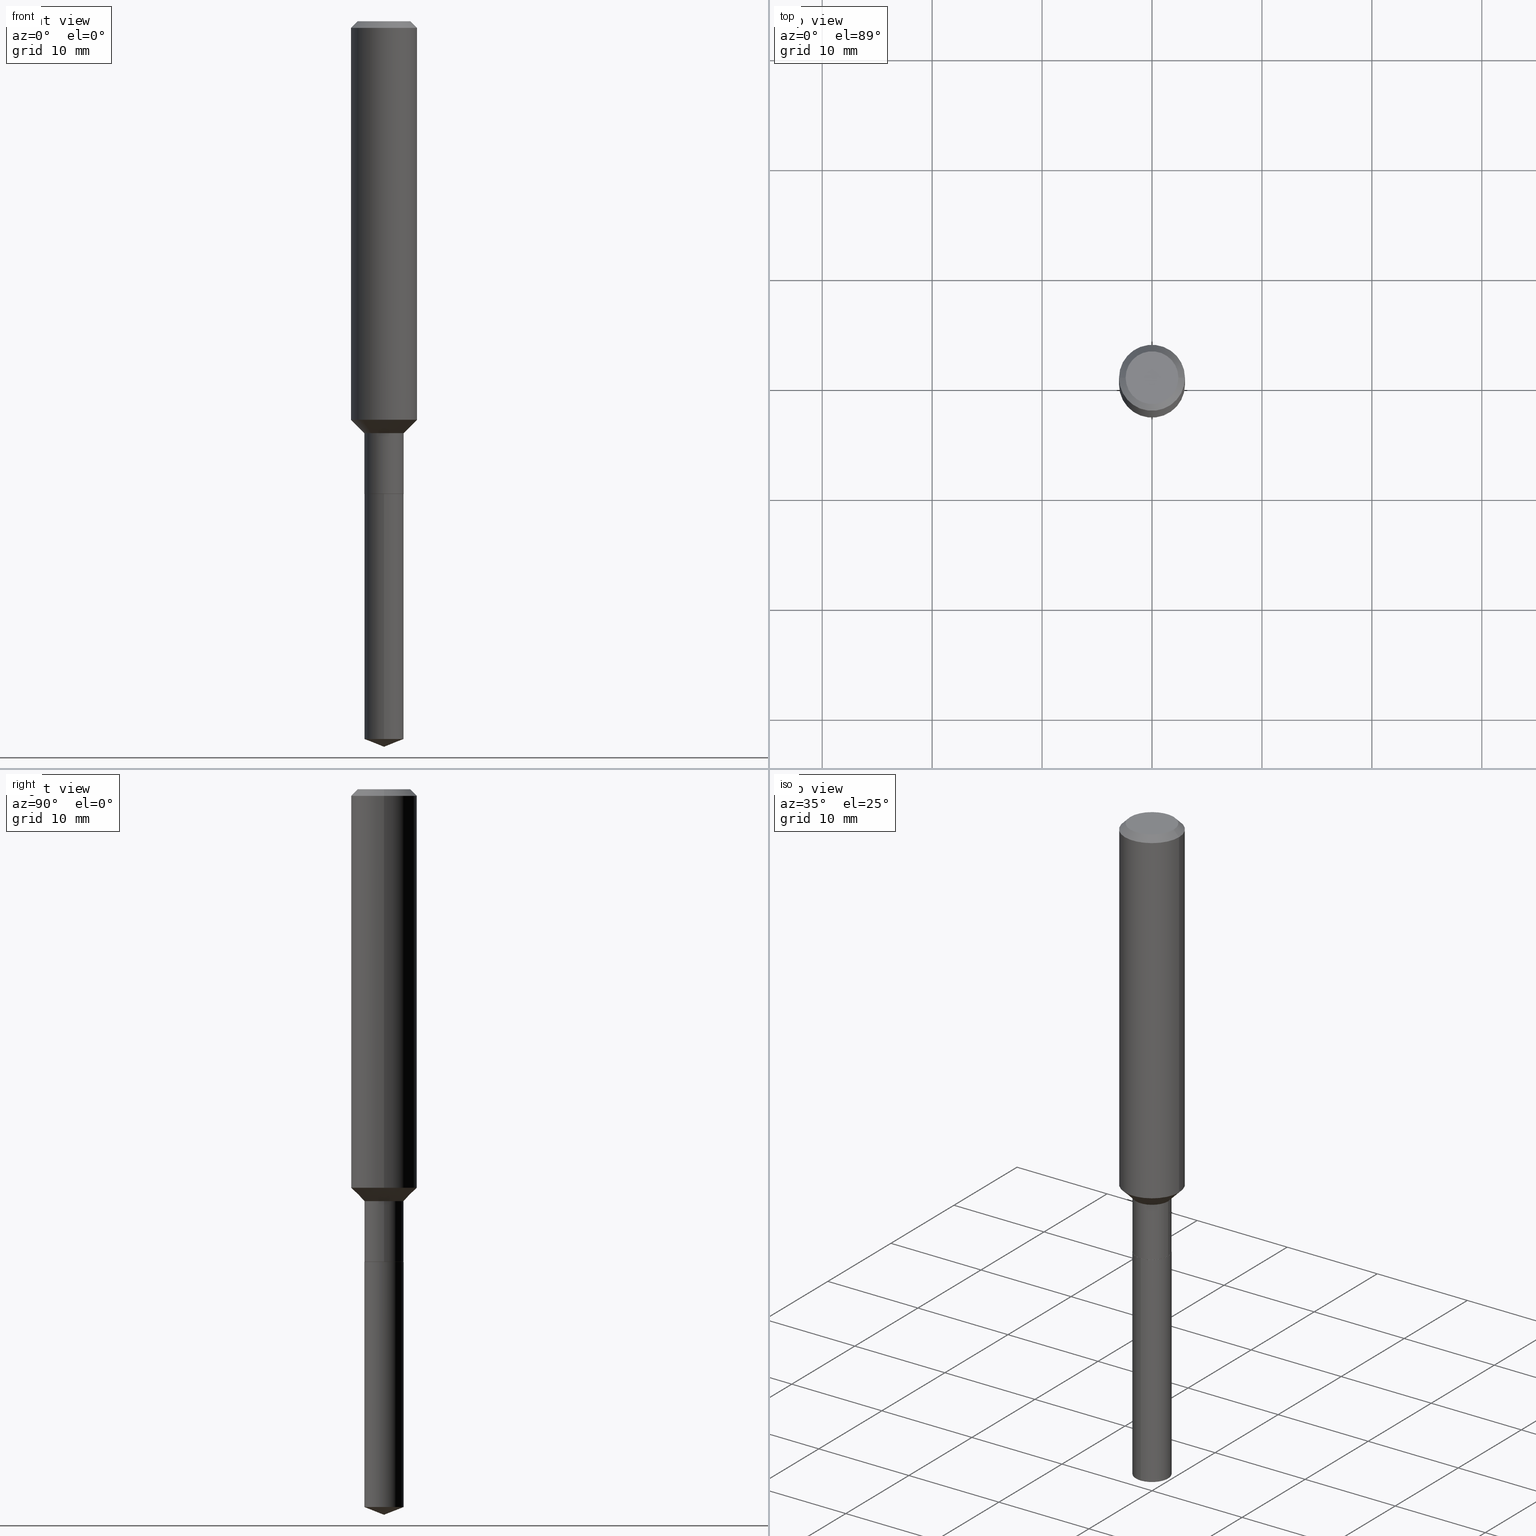
[diagram: canonical four-view strip — front | top / right | iso, engineering-drawing reading convention]
A machine part, canonical four-view strip (front | top / right | iso — engineering-drawing reading convention). The complete STEP part file that produces these views, byte-faithful:
ISO-10303-21;
HEADER;
FILE_DESCRIPTION (( 'STEP AP203' ),
    '1' );
FILE_NAME ('56438.STEP',
    '2024-04-24T17:45:18',
    ( '' ),
    ( '' ),
    'SwSTEP 2.0',
    'SolidWorks 2023',
    '' );
FILE_SCHEMA (( 'CONFIG_CONTROL_DESIGN' ));
ENDSEC;

DATA;
#1 = DIRECTION ( 'NONE',  ( -2.458755392801124064E-29, 3.472454190583504917E-15, 1.000000000000000000 ) ) ;
#2 = CC_DESIGN_PERSON_AND_ORGANIZATION_ASSIGNMENT ( #448, #259, ( #267 ) ) ;
#3 = APPROVAL_DATE_TIME ( #459, #125 ) ;
#4 = CARTESIAN_POINT ( 'NONE',  ( 4.138955954468343780E-29, -5.909332165992023872E-15, -1.692500000000000115 ) ) ;
#5 = PRODUCT ( '56438', '56438', '', ( #222 ) ) ;
#6 = CARTESIAN_POINT ( 'NONE',  ( 0.000000000000000000, 0.000000000000000000, 0.000000000000000000 ) ) ;
#7 = DIRECTION ( 'NONE',  ( 0.7071067811865459074, -7.319954787623249734E-15, -0.7071067811865491270 ) ) ;
#8 = CIRCLE ( 'NONE', #107, 0.06980000000000000093 ) ;
#9 = DIRECTION ( 'NONE',  ( -2.445468806185136877E-29, 3.491481338843145188E-15, 1.000000000000000000 ) ) ;
#10 = EDGE_CURVE ( 'NONE', #425, #445, #310, .T. ) ;
#11 = CARTESIAN_POINT ( 'NONE',  ( 4.138955954468343780E-29, -5.909332165992023872E-15, -1.692500000000000115 ) ) ;
#12 = ORIENTED_EDGE ( 'NONE', *, *, #160, .T. ) ;
#13 = FACE_OUTER_BOUND ( 'NONE', #433, .T. ) ;
#14 = VERTEX_POINT ( 'NONE', #145 ) ;
#15 = AXIS2_PLACEMENT_3D ( 'NONE', #25, #138, #399 ) ;
#16 = CONICAL_SURFACE ( 'NONE', #299, 0.06980000000000000093, 0.7853981633975507526 ) ;
#17 = CYLINDRICAL_SURFACE ( 'NONE', #234, 0.1181000000000000799 ) ;
#18 = ORIENTED_EDGE ( 'NONE', *, *, #320, .T. ) ;
#19 = PLANE ( 'NONE',  #334 ) ;
#20 = EDGE_LOOP ( 'NONE', ( #404, #218, #257, #255 ) ) ;
#21 = DIRECTION ( 'NONE',  ( -2.445468806185136597E-29, 3.491481338843145583E-15, 1.000000000000000000 ) ) ;
#22 = AXIS2_PLACEMENT_3D ( 'NONE', #273, #277, #84 ) ;
#23 = LENGTH_MEASURE_WITH_UNIT ( LENGTH_MEASURE( 0.02539999999999999897 ), #215 );
#24 = VERTEX_POINT ( 'NONE', #296 ) ;
#25 = CARTESIAN_POINT ( 'NONE',  ( 4.137733220065251539E-29, -5.907586425322602368E-15, -1.692000000000000171 ) ) ;
#26 = CYLINDRICAL_SURFACE ( 'NONE', #458, 0.07029999999999998750 ) ;
#27 = ORIENTED_EDGE ( 'NONE', *, *, #208, .F. ) ;
#28 = FACE_OUTER_BOUND ( 'NONE', #68, .T. ) ;
#29 = ORIENTED_EDGE ( 'NONE', *, *, #340, .T. ) ;
#30 = DATE_AND_TIME ( #39, #228 ) ;
#31 = ORIENTED_EDGE ( 'NONE', *, *, #209, .T. ) ;
#32 = DATE_TIME_ROLE ( 'classification_date' ) ;
#33 = CARTESIAN_POINT ( 'NONE',  ( 4.138955954468343780E-29, -5.909332165992023872E-15, -1.692500000000000115 ) ) ;
#34 = PERSON_AND_ORGANIZATION ( #373, #276 ) ;
#35 = CLOSED_SHELL ( 'NONE', ( #171, #269, #261, #232, #401, #80, #341, #117, #434, #144, #419, #368 ) ) ;
#36 = CYLINDRICAL_SURFACE ( 'NONE', #318, 0.07029999999999998750 ) ;
#37 = VECTOR ( 'NONE', #54, 39.37007874015748143 ) ;
#38 = DIRECTION ( 'NONE',  ( 1.000000000000000000, -6.982962677686266711E-15, 4.876176775795935232E-29 ) ) ;
#39 = CALENDAR_DATE ( 2024, 24, 4 ) ;
#40 = LINE ( 'NONE', #194, #126 ) ;
#41 = PRODUCT_DEFINITION ( 'UNKNOWN', '', #212, #151 ) ;
#42 = LINE ( 'NONE', #337, #305 ) ;
#43 = AXIS2_PLACEMENT_3D ( 'NONE', #156, #265, #343 ) ;
#44 = CONICAL_SURFACE ( 'NONE', #183, 0.07029999999999997362, 0.7853981633974507215 ) ;
#45 = VECTOR ( 'NONE', #220, 39.37007874015748143 ) ;
#46 = DIMENSIONAL_EXPONENTS ( 1.000000000000000000, 0.000000000000000000, 0.000000000000000000, 0.000000000000000000, 0.000000000000000000, 0.000000000000000000, 0.000000000000000000 ) ;
#47 = CARTESIAN_POINT ( 'NONE',  ( 0.07029999999999998750, -4.909022762413444543E-16, 3.427952273384541736E-30 ) ) ;
#48 = FACE_OUTER_BOUND ( 'NONE', #465, .T. ) ;
#49 = VERTEX_POINT ( 'NONE', #406 ) ;
#50 = CARTESIAN_POINT ( 'NONE',  ( 0.000000000000000000, 0.000000000000000000, 0.000000000000000000 ) ) ;
#51 = ORIENTED_EDGE ( 'NONE', *, *, #313, .T. ) ;
#52 = CIRCLE ( 'NONE', #157, 0.07029999999999997362 ) ;
#53 = CIRCLE ( 'NONE', #204, 0.07029999999999998750 ) ;
#54 = DIRECTION ( 'NONE',  ( -2.445468806185136877E-29, 3.491481338843145188E-15, 1.000000000000000000 ) ) ;
#55 = EDGE_CURVE ( 'NONE', #24, #445, #110, .T. ) ;
#56 = DIRECTION ( 'NONE',  ( -2.445468806185136597E-29, 3.491481338843145583E-15, 1.000000000000000000 ) ) ;
#57 = ORIENTED_EDGE ( 'NONE', *, *, #345, .T. ) ;
#58 = AXIS2_PLACEMENT_3D ( 'NONE', #11, #207, #354 ) ;
#59 = LOCAL_TIME ( 13, 45, 18.00000000000000000, #410 ) ;
#60 = DIRECTION ( 'NONE',  ( -2.438088387897960049E-29, 3.491481338843145188E-15, 1.000000000000000000 ) ) ;
#61 = ORIENTED_EDGE ( 'NONE', *, *, #247, .F. ) ;
#62 = DIRECTION ( 'NONE',  ( 1.000000000000000000, -6.982962677686267499E-15, 4.875432709231658792E-29 ) ) ;
#63 = VERTEX_POINT ( 'NONE', #196 ) ;
#64 = CYLINDRICAL_SURFACE ( 'NONE', #386, 0.07029999999999998750 ) ;
#65 = VERTEX_POINT ( 'NONE', #233 ) ;
#66 = DIRECTION ( 'NONE',  ( 1.000000000000000000, -6.982962677686266711E-15, 4.876176775795935232E-29 ) ) ;
#67 = CIRCLE ( 'NONE', #394, 0.1180999999999999966 ) ;
#68 = EDGE_LOOP ( 'NONE', ( #469, #100, #253, #364 ) ) ;
#69 = EDGE_CURVE ( 'NONE', #65, #317, #349, .T. ) ;
#70 = CARTESIAN_POINT ( 'NONE',  ( 6.297271338363965962E-29, -8.957480559017389786E-15, -2.570308093564269925 ) ) ;
#71 = ADVANCED_FACE ( 'NONE', ( #487 ), #223, .T. ) ;
#72 = CALENDAR_DATE ( 2024, 24, 4 ) ;
#73 = DIRECTION ( 'NONE',  ( -2.445468806185136597E-29, 3.491481338843145583E-15, 1.000000000000000000 ) ) ;
#74 = PERSON_AND_ORGANIZATION_ROLE ( 'creator' ) ;
#75 = CARTESIAN_POINT ( 'NONE',  ( 0.07029999999999997362, -5.640488102901100489E-15, -1.474900000000000100 ) ) ;
#76 = EDGE_CURVE ( 'NONE', #243, #200, #106, .T. ) ;
#77 = AXIS2_PLACEMENT_3D ( 'NONE', #319, #60, #133 ) ;
#78 =( GEOMETRIC_REPRESENTATION_CONTEXT ( 3 ) GLOBAL_UNCERTAINTY_ASSIGNED_CONTEXT ( ( #224 ) ) GLOBAL_UNIT_ASSIGNED_CONTEXT ( ( #135, #328, #363 ) ) REPRESENTATION_CONTEXT ( 'NONE', 'WORKASPACE' ) );
#79 = DIRECTION ( 'NONE',  ( -6.982962677686265133E-15, -1.000000000000000000, 3.885985766236505386E-15 ) ) ;
#80 = ADVANCED_FACE ( 'NONE', ( #303 ), #36, .T. ) ;
#81 = CALENDAR_DATE ( 2024, 24, 4 ) ;
#82 = DIRECTION ( 'NONE',  ( -1.000000000000000000, 6.982962677686265922E-15, -4.876176775795935793E-29 ) ) ;
#83 = CC_DESIGN_PERSON_AND_ORGANIZATION_ASSIGNMENT ( #188, #152, ( #5 ) ) ;
#84 = DIRECTION ( 'NONE',  ( 1.000000000000000000, -6.982962677686268288E-15, 0.000000000000000000 ) ) ;
#85 = ORIENTED_EDGE ( 'NONE', *, *, #175, .T. ) ;
#86 = CIRCLE ( 'NONE', #147, 0.1181000000000001632 ) ;
#87 = EDGE_CURVE ( 'NONE', #243, #329, #153, .T. ) ;
#88 = PRODUCT_DEFINITION_SHAPE ( 'NONE', 'NONE',  #41 ) ;
#89 = DIRECTION ( 'NONE',  ( 1.000000000000000000, -6.982962677686265133E-15, 0.000000000000000000 ) ) ;
#90 = ADVANCED_BREP_SHAPE_REPRESENTATION ( '56438', ( #213, #206, #361 ), #78 ) ;
#91 = CARTESIAN_POINT ( 'NONE',  ( -0.07029999999999997362, -4.650074283420406482E-15, -1.474900000000000100 ) ) ;
#92 = FACE_OUTER_BOUND ( 'NONE', #20, .T. ) ;
#93 = ORIENTED_EDGE ( 'NONE', *, *, #272, .F. ) ;
#94 = VECTOR ( 'NONE', #308, 39.37007874015748143 ) ;
#95 = DIRECTION ( 'NONE',  ( 1.000000000000000000, -6.982962677686267499E-15, 4.875432709231658792E-29 ) ) ;
#96 = ORIENTED_EDGE ( 'NONE', *, *, #76, .T. ) ;
#97 = DIRECTION ( 'NONE',  ( -2.458755392801124344E-29, 3.472454190583505312E-15, 1.000000000000000000 ) ) ;
#98 = ORIENTED_EDGE ( 'NONE', *, *, #124, .F. ) ;
#99 = CARTESIAN_POINT ( 'NONE',  ( -0.07029999999999998750, 4.995115432393503418E-16, -3.458011368449198169E-30 ) ) ;
#100 = ORIENTED_EDGE ( 'NONE', *, *, #407, .T. ) ;
#101 = ORIENTED_EDGE ( 'NONE', *, *, #481, .F. ) ;
#102 = DIRECTION ( 'NONE',  ( -2.445468806185136597E-29, 3.491481338843145583E-15, 1.000000000000000000 ) ) ;
#103 = ORIENTED_EDGE ( 'NONE', *, *, #230, .F. ) ;
#104 = DIRECTION ( 'NONE',  ( -1.000000000000000000, 6.982962677686266711E-15, 0.000000000000000000 ) ) ;
#105 = ORIENTED_EDGE ( 'NONE', *, *, #208, .T. ) ;
#106 = CIRCLE ( 'NONE', #43, 0.1181000000000001632 ) ;
#107 = AXIS2_PLACEMENT_3D ( 'NONE', #422, #351, #356 ) ;
#108 = DATE_AND_TIME ( #72, #352 ) ;
#109 = CC_DESIGN_APPROVAL ( #294, ( #212 ) ) ;
#110 = LINE ( 'NONE', #271, #280 ) ;
#111 = CARTESIAN_POINT ( 'NONE',  ( -9.043603445471733457E-28, 1.276571554692970096E-13, 36.77207874015748246 ) ) ;
#112 = APPROVAL_STATUS ( 'not_yet_approved' ) ;
#113 = FACE_OUTER_BOUND ( 'NONE', #485, .T. ) ;
#114 = PERSON_AND_ORGANIZATION ( #373, #276 ) ;
#115 = LINE ( 'NONE', #268, #130 ) ;
#116 = CONICAL_SURFACE ( 'NONE', #367, 0.1180999999999999966, 0.7853981633974460586 ) ;
#117 = ADVANCED_FACE ( 'NONE', ( #301 ), #225, .T. ) ;
#118 = PRODUCT_RELATED_PRODUCT_CATEGORY ( 'detail', '', ( #5 ) ) ;
#119 = PERSON_AND_ORGANIZATION ( #373, #276 ) ;
#120 = LINE ( 'NONE', #468, #94 ) ;
#121 = DIRECTION ( 'NONE',  ( -2.445468806185136597E-29, 3.491481338843145583E-15, 1.000000000000000000 ) ) ;
#122 = CARTESIAN_POINT ( 'NONE',  ( 3.606821942242458368E-29, -5.149585826659756331E-15, -1.474900000000000100 ) ) ;
#123 = ORIENTED_EDGE ( 'NONE', *, *, #180, .T. ) ;
#124 = EDGE_CURVE ( 'NONE', #293, #243, #374, .T. ) ;
#125 = APPROVAL ( #302, 'UNSPECIFIED' ) ;
#126 = VECTOR ( 'NONE', #7, 39.37007874015748143 ) ;
#127 = CARTESIAN_POINT ( 'NONE',  ( 4.138955954468343780E-29, -5.909332165992023872E-15, -1.692500000000000115 ) ) ;
#128 = CARTESIAN_POINT ( 'NONE',  ( 0.1180999999999999966, -9.071566814582237199E-16, -0.02362000000000014435 ) ) ;
#129 = DIRECTION ( 'NONE',  ( -2.445468806185136597E-29, 3.491481338843145583E-15, 1.000000000000000000 ) ) ;
#130 = VECTOR ( 'NONE', #460, 39.37007874015748143 ) ;
#131 = AXIS2_PLACEMENT_3D ( 'NONE', #127, #278, #344 ) ;
#132 = AXIS2_PLACEMENT_3D ( 'NONE', #432, #102, #62 ) ;
#133 = DIRECTION ( 'NONE',  ( 1.000000000000000000, -6.982962677686265922E-15, 4.876176775795935793E-29 ) ) ;
#134 = ORIENTED_EDGE ( 'NONE', *, *, #230, .T. ) ;
#135 =( CONVERSION_BASED_UNIT ( 'INCH', #23 ) LENGTH_UNIT ( ) NAMED_UNIT ( #46 ) );
#136 = EDGE_LOOP ( 'NONE', ( #96, #182, #103, #360 ) ) ;
#137 = DIRECTION ( 'NONE',  ( -6.982962677686266711E-15, -1.000000000000000000, 3.885985766236506175E-15 ) ) ;
#138 = DIRECTION ( 'NONE',  ( -2.445468806185136597E-29, 3.491481338843145583E-15, 1.000000000000000000 ) ) ;
#139 = CIRCLE ( 'NONE', #174, 0.07030000000000000138 ) ;
#140 = CC_DESIGN_SECURITY_CLASSIFICATION ( #267, ( #212 ) ) ;
#141 = DIRECTION ( 'NONE',  ( -2.458755392801124064E-29, 3.472454190583504917E-15, 1.000000000000000000 ) ) ;
#142 = ORIENTED_EDGE ( 'NONE', *, *, #240, .F. ) ;
#143 = CARTESIAN_POINT ( 'NONE',  ( -0.07030000000000000138, -5.029074582751829501E-15, -1.692000000000000171 ) ) ;
#144 = ADVANCED_FACE ( 'NONE', ( #191 ), #339, .F. ) ;
#145 = CARTESIAN_POINT ( 'NONE',  ( 6.387846510497319786E-29, -9.021435987135946659E-15, -2.597999999999999865 ) ) ;
#146 = ORIENTED_EDGE ( 'NONE', *, *, #76, .F. ) ;
#147 = AXIS2_PLACEMENT_3D ( 'NONE', #241, #387, #382 ) ;
#148 = CALENDAR_DATE ( 2024, 24, 4 ) ;
#149 = CIRCLE ( 'NONE', #132, 0.09447999999999998066 ) ;
#150 = DIRECTION ( 'NONE',  ( 1.000000000000000000, -6.982962677686271444E-15, 0.000000000000000000 ) ) ;
#151 = DESIGN_CONTEXT ( 'detailed design', #205, 'design' ) ;
#152 = PERSON_AND_ORGANIZATION_ROLE ( 'design_owner' ) ;
#153 = LINE ( 'NONE', #454, #380 ) ;
#154 = DIRECTION ( 'NONE',  ( -2.445468806185136597E-29, 3.491481338843145583E-15, 1.000000000000000000 ) ) ;
#155 = EDGE_CURVE ( 'NONE', #200, #483, #42, .T. ) ;
#156 = CARTESIAN_POINT ( 'NONE',  ( 3.489928533306808856E-29, -4.982693018663053490E-15, -1.427100000000000257 ) ) ;
#157 = AXIS2_PLACEMENT_3D ( 'NONE', #314, #129, #279 ) ;
#158 = CIRCLE ( 'NONE', #471, 0.1180999999999999966 ) ;
#159 = DIRECTION ( 'NONE',  ( -0.7071067811866199593, 7.493145998870616062E-15, 0.7071067811864750752 ) ) ;
#160 = EDGE_CURVE ( 'NONE', #324, #185, #258, .T. ) ;
#161 = DIRECTION ( 'NONE',  ( -2.445468806185136597E-29, 3.491481338843145583E-15, 1.000000000000000000 ) ) ;
#162 = ORIENTED_EDGE ( 'NONE', *, *, #10, .T. ) ;
#163 = CARTESIAN_POINT ( 'NONE',  ( 5.776197320209328408E-31, -8.246878922347560526E-17, -0.02362000000000014435 ) ) ;
#164 = EDGE_LOOP ( 'NONE', ( #282, #474, #436, #176 ) ) ;
#165 = APPROVAL_PERSON_ORGANIZATION ( #114, #397, #190 ) ;
#166 = ADVANCED_FACE ( 'NONE', ( #113 ), #359, .T. ) ;
#167 = CARTESIAN_POINT ( 'NONE',  ( -0.06980000000000000093, -5.413373336431474133E-15, -1.692500000000000115 ) ) ;
#168 = ORIENTED_EDGE ( 'NONE', *, *, #477, .F. ) ;
#169 = CARTESIAN_POINT ( 'NONE',  ( 4.138955954468343780E-29, -5.909332165992023872E-15, -1.692500000000000115 ) ) ;
#170 = ORIENTED_EDGE ( 'NONE', *, *, #281, .F. ) ;
#171 = ADVANCED_FACE ( 'NONE', ( #450 ), #16, .T. ) ;
#172 = CARTESIAN_POINT ( 'NONE',  ( -0.07029999999999997362, -5.029074582751829501E-15, -1.474900000000000100 ) ) ;
#173 = VECTOR ( 'NONE', #452, 39.37007874015748143 ) ;
#174 = AXIS2_PLACEMENT_3D ( 'NONE', #416, #263, #79 ) ;
#175 = EDGE_CURVE ( 'NONE', #49, #483, #115, .T. ) ;
#176 = ORIENTED_EDGE ( 'NONE', *, *, #160, .F. ) ;
#177 = CARTESIAN_POINT ( 'NONE',  ( 0.000000000000000000, 0.000000000000000000, 0.000000000000000000 ) ) ;
#178 = CC_DESIGN_PERSON_AND_ORGANIZATION_ASSIGNMENT ( #408, #330, ( #212 ) ) ;
#179 = ORIENTED_EDGE ( 'NONE', *, *, #240, .T. ) ;
#180 = EDGE_CURVE ( 'NONE', #185, #324, #139, .T. ) ;
#181 = CARTESIAN_POINT ( 'NONE',  ( 5.776197320209328408E-31, -8.246878922347560526E-17, -0.02362000000000014435 ) ) ;
#182 = ORIENTED_EDGE ( 'NONE', *, *, #155, .T. ) ;
#183 = AXIS2_PLACEMENT_3D ( 'NONE', #122, #245, #309 ) ;
#184 = CARTESIAN_POINT ( 'NONE',  ( 3.606821942242458368E-29, -5.149585826659756331E-15, -1.474900000000000100 ) ) ;
#185 = VERTEX_POINT ( 'NONE', #231 ) ;
#186 = PERSON_AND_ORGANIZATION_ROLE ( 'creator' ) ;
#187 = ORIENTED_EDGE ( 'NONE', *, *, #155, .F. ) ;
#188 = PERSON_AND_ORGANIZATION ( #373, #276 ) ;
#189 = CARTESIAN_POINT ( 'NONE',  ( 3.301506705810441154E-46, -4.713676585956823162E-32, -1.350050631380041873E-17 ) ) ;
#190 = APPROVAL_ROLE ( '' ) ;
#191 = FACE_OUTER_BOUND ( 'NONE', #388, .T. ) ;
#192 = DIRECTION ( 'NONE',  ( -6.982962677686265922E-15, -1.000000000000000000, 3.498627837350006195E-15 ) ) ;
#193 = COORDINATED_UNIVERSAL_TIME_OFFSET ( 5, 0, .BEHIND. ) ;
#194 = CARTESIAN_POINT ( 'NONE',  ( 0.1180999999999999966, -8.926936027602933910E-16, -0.02362000000000014435 ) ) ;
#195 = AXIS2_PLACEMENT_3D ( 'NONE', #420, #383, #95 ) ;
#196 = CARTESIAN_POINT ( 'NONE',  ( -0.06980000000000000093, -5.410724109257362932E-15, -1.692500000000000115 ) ) ;
#197 = AXIS2_PLACEMENT_3D ( 'NONE', #184, #256, #403 ) ;
#198 = APPROVAL_PERSON_ORGANIZATION ( #34, #125, #270 ) ;
#199 = CARTESIAN_POINT ( 'NONE',  ( 0.1181000000000001632, -5.807380910897803330E-15, -1.427100000000000257 ) ) ;
#200 = VERTEX_POINT ( 'NONE', #378 ) ;
#201 = CARTESIAN_POINT ( 'NONE',  ( 4.995115432394133521E-16, 0.07029999999999408944, -1.692500000000000338 ) ) ;
#202 = ORIENTED_EDGE ( 'NONE', *, *, #481, .T. ) ;
#203 = CARTESIAN_POINT ( 'NONE',  ( 6.388240888997725436E-29, -9.021435987135945081E-15, -2.597999999999999865 ) ) ;
#204 = AXIS2_PLACEMENT_3D ( 'NONE', #444, #254, #250 ) ;
#205 = APPLICATION_CONTEXT ( 'configuration controlled 3d designs of mechanical parts and assemblies' ) ;
#206 = MANIFOLD_SOLID_BREP ( 'Body-Move/Copy2[2]', #35 ) ;
#207 = DIRECTION ( 'NONE',  ( -2.445468806185136597E-29, 3.491481338843145583E-15, 1.000000000000000000 ) ) ;
#208 = EDGE_CURVE ( 'NONE', #385, #329, #40, .T. ) ;
#209 = EDGE_CURVE ( 'NONE', #14, #65, #120, .T. ) ;
#210 = FACE_OUTER_BOUND ( 'NONE', #431, .T. ) ;
#211 = EDGE_LOOP ( 'NONE', ( #214, #170 ) ) ;
#212 = PRODUCT_DEFINITION_FORMATION_WITH_SPECIFIED_SOURCE ( 'ANY', '', #5, .NOT_KNOWN. ) ;
#213 = MANIFOLD_SOLID_BREP ( 'Body-Move/Copy2[1]', #392 ) ;
#214 = ORIENTED_EDGE ( 'NONE', *, *, #340, .F. ) ;
#215 =( LENGTH_UNIT ( ) NAMED_UNIT ( * ) SI_UNIT ( $, .METRE. ) );
#216 = ORIENTED_EDGE ( 'NONE', *, *, #439, .T. ) ;
#217 = CARTESIAN_POINT ( 'NONE',  ( -0.1180999999999999966, -1.693429933010585093E-15, -0.02362000000000014435 ) ) ;
#218 = ORIENTED_EDGE ( 'NONE', *, *, #242, .T. ) ;
#219 = AXIS2_PLACEMENT_3D ( 'NONE', #275, #121, #89 ) ;
#220 = DIRECTION ( 'NONE',  ( -2.445468806185136877E-29, 3.491481338843145188E-15, 1.000000000000000000 ) ) ;
#221 = ORIENTED_EDGE ( 'NONE', *, *, #320, .F. ) ;
#222 = MECHANICAL_CONTEXT ( 'NONE', #411, 'mechanical' ) ;
#223 = CYLINDRICAL_SURFACE ( 'NONE', #457, 0.07029999999999998750 ) ;
#224 = UNCERTAINTY_MEASURE_WITH_UNIT (LENGTH_MEASURE( 1.000000000000000082E-05 ), #135, 'distance_accuracy_value', 'NONE');
#225 = CYLINDRICAL_SURFACE ( 'NONE', #449, 0.1181000000000000799 ) ;
#226 = VECTOR ( 'NONE', #429, 39.37007874015748854 ) ;
#227 = DATE_AND_TIME ( #369, #430 ) ;
#228 = LOCAL_TIME ( 13, 45, 18.00000000000000000, #193 ) ;
#229 = DIRECTION ( 'NONE',  ( -6.982962677686266711E-15, -1.000000000000000000, 3.885985766236506175E-15 ) ) ;
#230 = EDGE_CURVE ( 'NONE', #329, #483, #67, .T. ) ;
#231 = CARTESIAN_POINT ( 'NONE',  ( -4.909022762413031377E-16, -0.07030000000000589944, -1.692499999999999671 ) ) ;
#232 = ADVANCED_FACE ( 'NONE', ( #13 ), #44, .T. ) ;
#233 = CARTESIAN_POINT ( 'NONE',  ( -4.909022762412812468E-16, -0.07030000000000892479, -2.570308093564269925 ) ) ;
#234 = AXIS2_PLACEMENT_3D ( 'NONE', #50, #56, #426 ) ;
#235 = LINE ( 'NONE', #203, #226 ) ;
#236 = ORIENTED_EDGE ( 'NONE', *, *, #467, .T. ) ;
#237 = FACE_OUTER_BOUND ( 'NONE', #370, .T. ) ;
#238 = LINE ( 'NONE', #91, #428 ) ;
#239 = ORIENTED_EDGE ( 'NONE', *, *, #355, .T. ) ;
#240 = EDGE_CURVE ( 'NONE', #63, #425, #389, .T. ) ;
#241 = CARTESIAN_POINT ( 'NONE',  ( 3.489928533306808856E-29, -4.982693018663053490E-15, -1.427100000000000257 ) ) ;
#242 = EDGE_CURVE ( 'NONE', #476, #293, #52, .T. ) ;
#243 = VERTEX_POINT ( 'NONE', #199 ) ;
#244 = CIRCLE ( 'NONE', #219, 0.07030000000000000138 ) ;
#245 = DIRECTION ( 'NONE',  ( -2.445468806185136597E-29, 3.491481338843145583E-15, 1.000000000000000000 ) ) ;
#246 = ORIENTED_EDGE ( 'NONE', *, *, #247, .T. ) ;
#247 = EDGE_CURVE ( 'NONE', #385, #49, #327, .T. ) ;
#248 = CARTESIAN_POINT ( 'NONE',  ( -4.909022762413030391E-16, -0.07030000000000589944, -1.692499999999999671 ) ) ;
#249 = EDGE_LOOP ( 'NONE', ( #27, #101, #85, #236 ) ) ;
#250 = DIRECTION ( 'NONE',  ( -6.982962677686265133E-15, -1.000000000000000000, 0.000000000000000000 ) ) ;
#251 = ORIENTED_EDGE ( 'NONE', *, *, #272, .T. ) ;
#252 = FACE_OUTER_BOUND ( 'NONE', #395, .T. ) ;
#253 = ORIENTED_EDGE ( 'NONE', *, *, #180, .F. ) ;
#254 = DIRECTION ( 'NONE',  ( -2.458755392801124064E-29, 3.472454190583504917E-15, 1.000000000000000000 ) ) ;
#255 = ORIENTED_EDGE ( 'NONE', *, *, #345, .F. ) ;
#256 = DIRECTION ( 'NONE',  ( -2.445468806185136597E-29, 3.491481338843145583E-15, 1.000000000000000000 ) ) ;
#257 = ORIENTED_EDGE ( 'NONE', *, *, #124, .T. ) ;
#258 = CIRCLE ( 'NONE', #283, 0.07030000000000000138 ) ;
#259 = PERSON_AND_ORGANIZATION_ROLE ( 'classification_officer' ) ;
#260 = DIRECTION ( 'NONE',  ( 0.7071067811866199593, -2.468850131083015945E-15, 0.7071067811864750752 ) ) ;
#261 = ADVANCED_FACE ( 'NONE', ( #384 ), #17, .T. ) ;
#262 = DATE_TIME_ROLE ( 'creation_date' ) ;
#263 = DIRECTION ( 'NONE',  ( -2.458755392801124064E-29, 3.472454190583504917E-15, 1.000000000000000000 ) ) ;
#264 = COORDINATED_UNIVERSAL_TIME_OFFSET ( 5, 0, .BEHIND. ) ;
#265 = DIRECTION ( 'NONE',  ( -2.445468806185136597E-29, 3.491481338843145583E-15, 1.000000000000000000 ) ) ;
#266 = APPROVAL_DATE_TIME ( #30, #294 ) ;
#267 = SECURITY_CLASSIFICATION ( '', '', #297 ) ;
#268 = CARTESIAN_POINT ( 'NONE',  ( -0.1180999999999999966, 7.422191030112725094E-16, -0.02362000000000014435 ) ) ;
#269 = ADVANCED_FACE ( 'NONE', ( #210 ), #479, .T. ) ;
#270 = APPROVAL_ROLE ( '' ) ;
#271 = CARTESIAN_POINT ( 'NONE',  ( 0.06980000000000000093, -6.396742960894525812E-15, -1.692500000000000115 ) ) ;
#272 = EDGE_CURVE ( 'NONE', #14, #317, #235, .T. ) ;
#273 = CARTESIAN_POINT ( 'NONE',  ( 3.606821942242458368E-29, -5.149585826659756331E-15, -1.474900000000000100 ) ) ;
#274 = CONICAL_SURFACE ( 'NONE', #58, 0.06980000000000000093, 0.7853981633975507526 ) ;
#275 = CARTESIAN_POINT ( 'NONE',  ( 4.137733220065251539E-29, -5.907586425322602368E-15, -1.692000000000000171 ) ) ;
#276 = ORGANIZATION ( 'UNSPECIFIED', 'UNSPECIFIED', '' ) ;
#277 = DIRECTION ( 'NONE',  ( -2.445468806185136597E-29, 3.491481338843145583E-15, 1.000000000000000000 ) ) ;
#278 = DIRECTION ( 'NONE',  ( -2.445468806185136597E-29, 3.491481338843145583E-15, 1.000000000000000000 ) ) ;
#279 = DIRECTION ( 'NONE',  ( 1.000000000000000000, -6.982962677686268288E-15, 0.000000000000000000 ) ) ;
#280 = VECTOR ( 'NONE', #260, 39.37007874015748143 ) ;
#281 = EDGE_CURVE ( 'NONE', #63, #24, #8, .T. ) ;
#282 = ORIENTED_EDGE ( 'NONE', *, *, #407, .F. ) ;
#283 = AXIS2_PLACEMENT_3D ( 'NONE', #304, #307, #409 ) ;
#284 = DIRECTION ( 'NONE',  ( -2.445468806185136597E-29, 3.491481338843145583E-15, 1.000000000000000000 ) ) ;
#285 = EDGE_LOOP ( 'NONE', ( #442, #162, #239, #427 ) ) ;
#286 = LINE ( 'NONE', #248, #421 ) ;
#287 = ORIENTED_EDGE ( 'NONE', *, *, #10, .F. ) ;
#288 = LINE ( 'NONE', #99, #45 ) ;
#289 = ORIENTED_EDGE ( 'NONE', *, *, #437, .T. ) ;
#290 = AXIS2_PLACEMENT_3D ( 'NONE', #393, #472, #478 ) ;
#291 = CC_DESIGN_APPROVAL ( #125, ( #41 ) ) ;
#292 = DIRECTION ( 'NONE',  ( 1.000000000000000000, -6.982962677686266711E-15, 0.000000000000000000 ) ) ;
#293 = VERTEX_POINT ( 'NONE', #466 ) ;
#294 = APPROVAL ( #338, 'UNSPECIFIED' ) ;
#295 = DIRECTION ( 'NONE',  ( 2.445468806185136597E-29, -3.491481338843145583E-15, -1.000000000000000000 ) ) ;
#296 = CARTESIAN_POINT ( 'NONE',  ( 0.06980000000000000093, -6.396742960894525812E-15, -1.692500000000000115 ) ) ;
#297 = SECURITY_CLASSIFICATION_LEVEL ( 'unclassified' ) ;
#298 = DIRECTION ( 'NONE',  ( 1.000000000000000000, -6.982962677686266711E-15, 4.876176775795936353E-29 ) ) ;
#299 = AXIS2_PLACEMENT_3D ( 'NONE', #4, #154, #150 ) ;
#300 = DATE_AND_TIME ( #148, #59 ) ;
#301 = FACE_OUTER_BOUND ( 'NONE', #423, .T. ) ;
#302 = APPROVAL_STATUS ( 'not_yet_approved' ) ;
#303 = FACE_OUTER_BOUND ( 'NONE', #285, .T. ) ;
#304 = CARTESIAN_POINT ( 'NONE',  ( 4.138955954468343780E-29, -5.909332165992023872E-15, -1.692500000000000115 ) ) ;
#305 = VECTOR ( 'NONE', #456, 39.37007874015748143 ) ;
#306 = APPLICATION_PROTOCOL_DEFINITION ( 'international standard', 'config_control_design', 1994, #411 ) ;
#307 = DIRECTION ( 'NONE',  ( -2.458755392801124064E-29, 3.472454190583504917E-15, 1.000000000000000000 ) ) ;
#308 = DIRECTION ( 'NONE',  ( -6.497071151882118258E-15, -0.9304175679820244627, 0.3665012267242971911 ) ) ;
#309 = DIRECTION ( 'NONE',  ( 1.000000000000000000, -6.982962677686268288E-15, 0.000000000000000000 ) ) ;
#310 = CIRCLE ( 'NONE', #15, 0.07030000000000000138 ) ;
#311 = DIRECTION ( 'NONE',  ( 2.445468806185136597E-29, -3.491481338843145583E-15, -1.000000000000000000 ) ) ;
#312 = CC_DESIGN_DATE_AND_TIME_ASSIGNMENT ( #227, #262, ( #41 ) ) ;
#313 = EDGE_CURVE ( 'NONE', #476, #200, #238, .T. ) ;
#314 = CARTESIAN_POINT ( 'NONE',  ( 3.606821942242458368E-29, -5.149585826659756331E-15, -1.474900000000000100 ) ) ;
#315 = ORIENTED_EDGE ( 'NONE', *, *, #55, .F. ) ;
#316 = LINE ( 'NONE', #47, #37 ) ;
#317 = VERTEX_POINT ( 'NONE', #461 ) ;
#318 = AXIS2_PLACEMENT_3D ( 'NONE', #379, #73, #38 ) ;
#319 = CARTESIAN_POINT ( 'NONE',  ( 4.138955954468343780E-29, -5.909332165992023872E-15, -1.692500000000000115 ) ) ;
#320 = EDGE_CURVE ( 'NONE', #445, #425, #244, .T. ) ;
#321 = CARTESIAN_POINT ( 'NONE',  ( 4.995115432393916584E-16, 0.07029999999999408944, -1.692500000000000338 ) ) ;
#322 = ORIENTED_EDGE ( 'NONE', *, *, #175, .F. ) ;
#323 = CARTESIAN_POINT ( 'NONE',  ( 4.138955954468343780E-29, -5.909332165992023872E-15, -1.692500000000000115 ) ) ;
#324 = VERTEX_POINT ( 'NONE', #201 ) ;
#325 = FACE_OUTER_BOUND ( 'NONE', #447, .T. ) ;
#326 = ORIENTED_EDGE ( 'NONE', *, *, #281, .T. ) ;
#327 = CIRCLE ( 'NONE', #195, 0.09447999999999998066 ) ;
#328 =( NAMED_UNIT ( * ) PLANE_ANGLE_UNIT ( ) SI_UNIT ( $, .RADIAN. ) );
#329 = VERTEX_POINT ( 'NONE', #128 ) ;
#330 = PERSON_AND_ORGANIZATION_ROLE ( 'design_supplier' ) ;
#331 = ORIENTED_EDGE ( 'NONE', *, *, #69, .F. ) ;
#332 = APPLICATION_PROTOCOL_DEFINITION ( 'international standard', 'config_control_design', 1994, #205 ) ;
#333 = DIRECTION ( 'NONE',  ( -6.982962677686265133E-15, -1.000000000000000000, 0.000000000000000000 ) ) ;
#334 = AXIS2_PLACEMENT_3D ( 'NONE', #169, #435, #446 ) ;
#335 = CC_DESIGN_APPROVAL ( #397, ( #267 ) ) ;
#336 = DIRECTION ( 'NONE',  ( 2.438088387897960049E-29, -3.491481338843145188E-15, -1.000000000000000000 ) ) ;
#337 = CARTESIAN_POINT ( 'NONE',  ( -0.1181000000000000799, 8.391509709326788873E-16, -5.809262341591047988E-30 ) ) ;
#338 = APPROVAL_STATUS ( 'not_yet_approved' ) ;
#339 = PLANE ( 'NONE',  #350 ) ;
#340 = EDGE_CURVE ( 'NONE', #24, #63, #375, .T. ) ;
#341 = ADVANCED_FACE ( 'NONE', ( #92 ), #488, .T. ) ;
#342 = AXIS2_PLACEMENT_3D ( 'NONE', #163, #311, #464 ) ;
#343 = DIRECTION ( 'NONE',  ( 1.000000000000000000, -6.982962677686263555E-15, 0.000000000000000000 ) ) ;
#344 = DIRECTION ( 'NONE',  ( 1.000000000000000000, -6.982962677686271444E-15, 0.000000000000000000 ) ) ;
#345 = EDGE_CURVE ( 'NONE', #200, #243, #86, .T. ) ;
#346 = ORIENTED_EDGE ( 'NONE', *, *, #209, .F. ) ;
#347 = CC_DESIGN_PERSON_AND_ORGANIZATION_ASSIGNMENT ( #119, #186, ( #212 ) ) ;
#348 = DIRECTION ( 'NONE',  ( 1.000000000000000000, -6.982962677686266711E-15, 0.000000000000000000 ) ) ;
#349 = CIRCLE ( 'NONE', #413, 0.07029999999999998750 ) ;
#350 = AXIS2_PLACEMENT_3D ( 'NONE', #189, #336, #82 ) ;
#351 = DIRECTION ( 'NONE',  ( -2.445468806185136597E-29, 3.491481338843145583E-15, 1.000000000000000000 ) ) ;
#352 = LOCAL_TIME ( 13, 45, 18.00000000000000000, #371 ) ;
#353 = ORIENTED_EDGE ( 'NONE', *, *, #55, .T. ) ;
#354 = DIRECTION ( 'NONE',  ( 1.000000000000000000, -6.982962677686271444E-15, 0.000000000000000000 ) ) ;
#355 = EDGE_CURVE ( 'NONE', #445, #293, #316, .T. ) ;
#356 = DIRECTION ( 'NONE',  ( 1.000000000000000000, -6.982962677686271444E-15, 0.000000000000000000 ) ) ;
#357 = CC_DESIGN_DATE_AND_TIME_ASSIGNMENT ( #108, #32, ( #267 ) ) ;
#358 = CARTESIAN_POINT ( 'NONE',  ( 0.09447999999999998066, -7.704367267948738690E-16, -2.700101262759583929E-17 ) ) ;
#359 = CONICAL_SURFACE ( 'NONE', #470, 99.94676754583991851, 1.195550537616119291 ) ;
#360 = ORIENTED_EDGE ( 'NONE', *, *, #87, .F. ) ;
#361 = AXIS2_PLACEMENT_3D ( 'NONE', #6, #405, #417 ) ;
#362 = ORIENTED_EDGE ( 'NONE', *, *, #355, .F. ) ;
#363 =( NAMED_UNIT ( * ) SI_UNIT ( $, .STERADIAN. ) SOLID_ANGLE_UNIT ( ) );
#364 = ORIENTED_EDGE ( 'NONE', *, *, #489, .F. ) ;
#365 = ORIENTED_EDGE ( 'NONE', *, *, #467, .F. ) ;
#366 = VECTOR ( 'NONE', #159, 39.37007874015748143 ) ;
#367 = AXIS2_PLACEMENT_3D ( 'NONE', #181, #295, #104 ) ;
#368 = ADVANCED_FACE ( 'NONE', ( #237 ), #274, .T. ) ;
#369 = CALENDAR_DATE ( 2024, 24, 4 ) ;
#370 = EDGE_LOOP ( 'NONE', ( #142, #326, #353, #287 ) ) ;
#371 = COORDINATED_UNIVERSAL_TIME_OFFSET ( 5, 0, .BEHIND. ) ;
#372 = CARTESIAN_POINT ( 'NONE',  ( 0.000000000000000000, 0.000000000000000000, 0.000000000000000000 ) ) ;
#373 = PERSON ( 'UNSPECIFIED', 'UNSPECIFIED', 'UNSPECIFIED', ('UNSPECIFIED'), ('UNSPECIFIED'), ('UNSPECIFIED') ) ;
#374 = LINE ( 'NONE', #75, #173 ) ;
#375 = CIRCLE ( 'NONE', #131, 0.06980000000000000093 ) ;
#376 = APPROVAL_DATE_TIME ( #300, #397 ) ;
#377 = DIRECTION ( 'NONE',  ( -2.458755392801124064E-29, 3.472454190583504917E-15, 1.000000000000000000 ) ) ;
#378 = CARTESIAN_POINT ( 'NONE',  ( -0.1181000000000001632, -4.143542047730375293E-15, -1.427100000000000257 ) ) ;
#379 = CARTESIAN_POINT ( 'NONE',  ( 0.000000000000000000, 0.000000000000000000, 0.000000000000000000 ) ) ;
#380 = VECTOR ( 'NONE', #9, 39.37007874015748143 ) ;
#381 = ADVANCED_FACE ( 'NONE', ( #48 ), #19, .F. ) ;
#382 = DIRECTION ( 'NONE',  ( 1.000000000000000000, -6.982962677686263555E-15, 0.000000000000000000 ) ) ;
#383 = DIRECTION ( 'NONE',  ( -2.445468806185136597E-29, 3.491481338843145583E-15, 1.000000000000000000 ) ) ;
#384 = FACE_OUTER_BOUND ( 'NONE', #136, .T. ) ;
#385 = VERTEX_POINT ( 'NONE', #358 ) ;
#386 = AXIS2_PLACEMENT_3D ( 'NONE', #177, #21, #66 ) ;
#387 = DIRECTION ( 'NONE',  ( -2.445468806185136597E-29, 3.491481338843145583E-15, 1.000000000000000000 ) ) ;
#388 = EDGE_LOOP ( 'NONE', ( #202, #246 ) ) ;
#389 = LINE ( 'NONE', #167, #366 ) ;
#390 = FACE_OUTER_BOUND ( 'NONE', #249, .T. ) ;
#391 = ORIENTED_EDGE ( 'NONE', *, *, #87, .T. ) ;
#392 = CLOSED_SHELL ( 'NONE', ( #415, #166, #414, #71, #381 ) ) ;
#393 = CARTESIAN_POINT ( 'NONE',  ( -9.043603445471733457E-28, 1.276571554692970096E-13, 36.77207874015748246 ) ) ;
#394 = AXIS2_PLACEMENT_3D ( 'NONE', #462, #161, #348 ) ;
#395 = EDGE_LOOP ( 'NONE', ( #18, #289, #480, #362 ) ) ;
#396 = APPROVAL_PERSON_ORGANIZATION ( #484, #294, #453 ) ;
#397 = APPROVAL ( #112, 'UNSPECIFIED' ) ;
#398 = PLANE ( 'NONE',  #77 ) ;
#399 = DIRECTION ( 'NONE',  ( 1.000000000000000000, -6.982962677686265133E-15, 0.000000000000000000 ) ) ;
#400 = CARTESIAN_POINT ( 'NONE',  ( 5.776197320209328408E-31, -8.246878922347560526E-17, -0.02362000000000014435 ) ) ;
#401 = ADVANCED_FACE ( 'NONE', ( #252 ), #64, .T. ) ;
#402 = EDGE_LOOP ( 'NONE', ( #29, #179, #221, #315 ) ) ;
#403 = DIRECTION ( 'NONE',  ( 1.000000000000000000, -6.982962677686268288E-15, 0.000000000000000000 ) ) ;
#404 = ORIENTED_EDGE ( 'NONE', *, *, #313, .F. ) ;
#405 = DIRECTION ( 'NONE',  ( 0.000000000000000000, 0.000000000000000000, 1.000000000000000000 ) ) ;
#406 = CARTESIAN_POINT ( 'NONE',  ( -0.09447999999999998066, 7.009847083995354710E-16, -2.700101262760559836E-17 ) ) ;
#407 = EDGE_CURVE ( 'NONE', #317, #324, #482, .T. ) ;
#408 = PERSON_AND_ORGANIZATION ( #373, #276 ) ;
#409 = DIRECTION ( 'NONE',  ( -6.982962677686265133E-15, -1.000000000000000000, 3.885985766236505386E-15 ) ) ;
#410 = COORDINATED_UNIVERSAL_TIME_OFFSET ( 5, 0, .BEHIND. ) ;
#411 = APPLICATION_CONTEXT ( 'configuration controlled 3d designs of mechanical parts and assemblies' ) ;
#412 = DIRECTION ( 'NONE',  ( -2.445468806185136597E-29, 3.491481338843145583E-15, 1.000000000000000000 ) ) ;
#413 = AXIS2_PLACEMENT_3D ( 'NONE', #70, #418, #333 ) ;
#414 = ADVANCED_FACE ( 'NONE', ( #325 ), #441, .T. ) ;
#415 = ADVANCED_FACE ( 'NONE', ( #28 ), #26, .T. ) ;
#416 = CARTESIAN_POINT ( 'NONE',  ( 4.138955954468343780E-29, -5.909332165992023872E-15, -1.692500000000000115 ) ) ;
#417 = DIRECTION ( 'NONE',  ( 1.000000000000000000, 0.000000000000000000, 0.000000000000000000 ) ) ;
#418 = DIRECTION ( 'NONE',  ( -2.458755392801124064E-29, 3.472454190583504917E-15, 1.000000000000000000 ) ) ;
#419 = ADVANCED_FACE ( 'NONE', ( #473 ), #398, .F. ) ;
#420 = CARTESIAN_POINT ( 'NONE',  ( 6.603013411620882309E-46, -9.427353171913646324E-32, -2.700101262760083747E-17 ) ) ;
#421 = VECTOR ( 'NONE', #97, 39.37007874015748143 ) ;
#422 = CARTESIAN_POINT ( 'NONE',  ( 4.138955954468343780E-29, -5.909332165992023872E-15, -1.692500000000000115 ) ) ;
#423 = EDGE_LOOP ( 'NONE', ( #187, #57, #391, #365 ) ) ;
#424 = DIRECTION ( 'NONE',  ( -0.7071067811865492381, 7.493145998870360471E-15, 0.7071067811865457964 ) ) ;
#425 = VERTEX_POINT ( 'NONE', #143 ) ;
#426 = DIRECTION ( 'NONE',  ( 1.000000000000000000, -6.982962677686266711E-15, 4.876176775795936353E-29 ) ) ;
#427 = ORIENTED_EDGE ( 'NONE', *, *, #242, .F. ) ;
#428 = VECTOR ( 'NONE', #424, 39.37007874015748143 ) ;
#429 = DIRECTION ( 'NONE',  ( 6.611014441532067378E-15, 0.9304175679820270162, 0.3665012267242907518 ) ) ;
#430 = LOCAL_TIME ( 13, 45, 18.00000000000000000, #264 ) ;
#431 = EDGE_LOOP ( 'NONE', ( #61, #105, #134, #322 ) ) ;
#432 = CARTESIAN_POINT ( 'NONE',  ( 6.603013411620882309E-46, -9.427353171913646324E-32, -2.700101262760083747E-17 ) ) ;
#433 = EDGE_LOOP ( 'NONE', ( #216, #51, #146, #98 ) ) ;
#434 = ADVANCED_FACE ( 'NONE', ( #390 ), #116, .T. ) ;
#435 = DIRECTION ( 'NONE',  ( 2.458755392801123503E-29, -3.472454190583505312E-15, -1.000000000000000000 ) ) ;
#436 = ORIENTED_EDGE ( 'NONE', *, *, #489, .T. ) ;
#437 = EDGE_CURVE ( 'NONE', #425, #476, #288, .T. ) ;
#438 = CC_DESIGN_PERSON_AND_ORGANIZATION_ASSIGNMENT ( #455, #74, ( #41 ) ) ;
#439 = EDGE_CURVE ( 'NONE', #293, #476, #490, .T. ) ;
#440 = CARTESIAN_POINT ( 'NONE',  ( 0.07030000000000000138, -6.398488701563947316E-15, -1.692000000000000171 ) ) ;
#441 = CONICAL_SURFACE ( 'NONE', #290, 99.94676754583991851, 1.195550537616119291 ) ;
#442 = ORIENTED_EDGE ( 'NONE', *, *, #437, .F. ) ;
#443 = LOCAL_TIME ( 13, 45, 18.00000000000000000, #486 ) ;
#444 = CARTESIAN_POINT ( 'NONE',  ( 6.297271338363965962E-29, -8.957480559017389786E-15, -2.570308093564269925 ) ) ;
#445 = VERTEX_POINT ( 'NONE', #440 ) ;
#446 = DIRECTION ( 'NONE',  ( 6.982962677686265922E-15, 1.000000000000000000, -3.472454190583505312E-15 ) ) ;
#447 = EDGE_LOOP ( 'NONE', ( #93, #31, #168 ) ) ;
#448 = PERSON_AND_ORGANIZATION ( #373, #276 ) ;
#449 = AXIS2_PLACEMENT_3D ( 'NONE', #372, #412, #298 ) ;
#450 = FACE_OUTER_BOUND ( 'NONE', #402, .T. ) ;
#451 = SHAPE_DEFINITION_REPRESENTATION ( #88, #90 ) ;
#452 = DIRECTION ( 'NONE',  ( 0.7071067811865492381, -2.468850131082275204E-15, 0.7071067811865457964 ) ) ;
#453 = APPROVAL_ROLE ( '' ) ;
#454 = CARTESIAN_POINT ( 'NONE',  ( 0.1181000000000000799, -8.246878922347486570E-16, 5.758764772215004644E-30 ) ) ;
#455 = PERSON_AND_ORGANIZATION ( #373, #276 ) ;
#456 = DIRECTION ( 'NONE',  ( -2.445468806185136877E-29, 3.491481338843145188E-15, 1.000000000000000000 ) ) ;
#457 = AXIS2_PLACEMENT_3D ( 'NONE', #33, #1, #229 ) ;
#458 = AXIS2_PLACEMENT_3D ( 'NONE', #323, #141, #137 ) ;
#459 = DATE_AND_TIME ( #81, #443 ) ;
#460 = DIRECTION ( 'NONE',  ( -0.7071067811865459074, 2.468850131082240100E-15, -0.7071067811865491270 ) ) ;
#461 = CARTESIAN_POINT ( 'NONE',  ( 4.995115432394130563E-16, 0.07029999999999100857, -2.570308093564269925 ) ) ;
#462 = CARTESIAN_POINT ( 'NONE',  ( 5.776197320209328408E-31, -8.246878922347560526E-17, -0.02362000000000014435 ) ) ;
#463 = VECTOR ( 'NONE', #475, 39.37007874015748143 ) ;
#464 = DIRECTION ( 'NONE',  ( -1.000000000000000000, 6.982962677686266711E-15, 0.000000000000000000 ) ) ;
#465 = EDGE_LOOP ( 'NONE', ( #123, #12 ) ) ;
#466 = CARTESIAN_POINT ( 'NONE',  ( 0.07029999999999997362, -5.640488102901100489E-15, -1.474900000000000100 ) ) ;
#467 = EDGE_CURVE ( 'NONE', #483, #329, #158, .T. ) ;
#468 = CARTESIAN_POINT ( 'NONE',  ( 6.342871414802202147E-29, -9.085842883994830686E-15, -2.597999999999999865 ) ) ;
#469 = ORIENTED_EDGE ( 'NONE', *, *, #69, .T. ) ;
#470 = AXIS2_PLACEMENT_3D ( 'NONE', #111, #377, #192 ) ;
#471 = AXIS2_PLACEMENT_3D ( 'NONE', #400, #284, #292 ) ;
#472 = DIRECTION ( 'NONE',  ( -2.458755392801124064E-29, 3.472454190583504917E-15, 1.000000000000000000 ) ) ;
#473 = FACE_OUTER_BOUND ( 'NONE', #211, .T. ) ;
#474 = ORIENTED_EDGE ( 'NONE', *, *, #477, .T. ) ;
#475 = DIRECTION ( 'NONE',  ( -2.458755392801124344E-29, 3.472454190583505312E-15, 1.000000000000000000 ) ) ;
#476 = VERTEX_POINT ( 'NONE', #172 ) ;
#477 = EDGE_CURVE ( 'NONE', #317, #65, #53, .T. ) ;
#478 = DIRECTION ( 'NONE',  ( -6.982962677686265922E-15, -1.000000000000000000, 3.498627837350006195E-15 ) ) ;
#479 = CONICAL_SURFACE ( 'NONE', #342, 0.1180999999999999966, 0.7853981633974460586 ) ;
#480 = ORIENTED_EDGE ( 'NONE', *, *, #439, .F. ) ;
#481 = EDGE_CURVE ( 'NONE', #49, #385, #149, .T. ) ;
#482 = LINE ( 'NONE', #321, #463 ) ;
#483 = VERTEX_POINT ( 'NONE', #217 ) ;
#484 = PERSON_AND_ORGANIZATION ( #373, #276 ) ;
#485 = EDGE_LOOP ( 'NONE', ( #346, #251, #331 ) ) ;
#486 = COORDINATED_UNIVERSAL_TIME_OFFSET ( 5, 0, .BEHIND. ) ;
#487 = FACE_OUTER_BOUND ( 'NONE', #164, .T. ) ;
#488 = CONICAL_SURFACE ( 'NONE', #22, 0.07029999999999997362, 0.7853981633974507215 ) ;
#489 = EDGE_CURVE ( 'NONE', #65, #185, #286, .T. ) ;
#490 = CIRCLE ( 'NONE', #197, 0.07029999999999997362 ) ;
ENDSEC;
END-ISO-10303-21;
